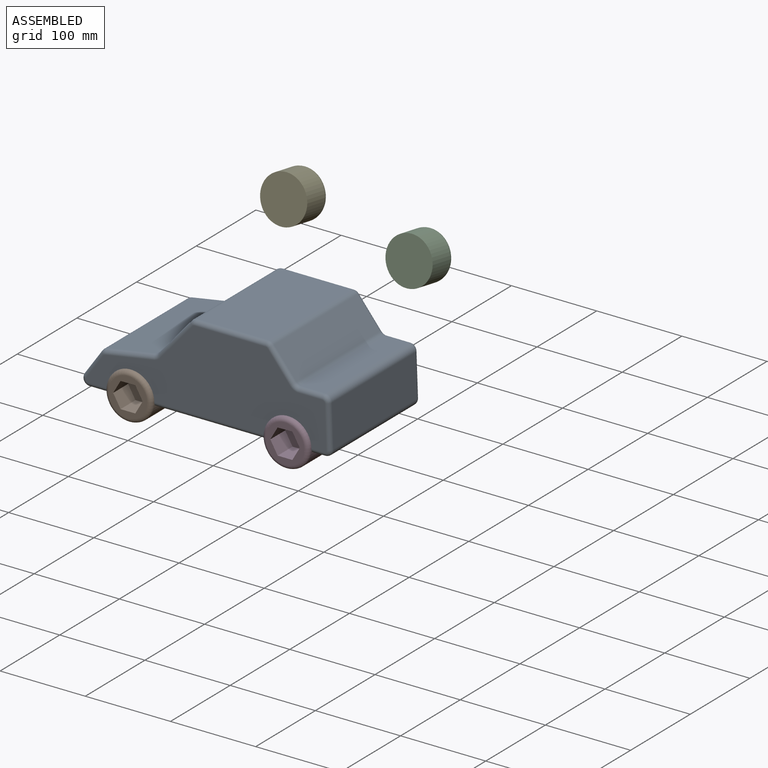
[diagram: assembled view]
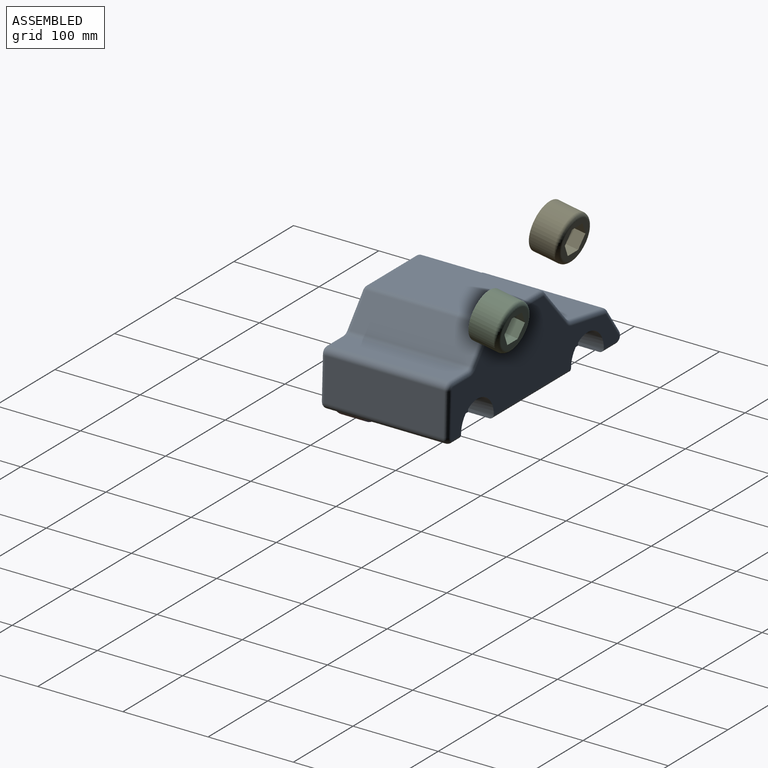
[diagram: assembled view, second angle]
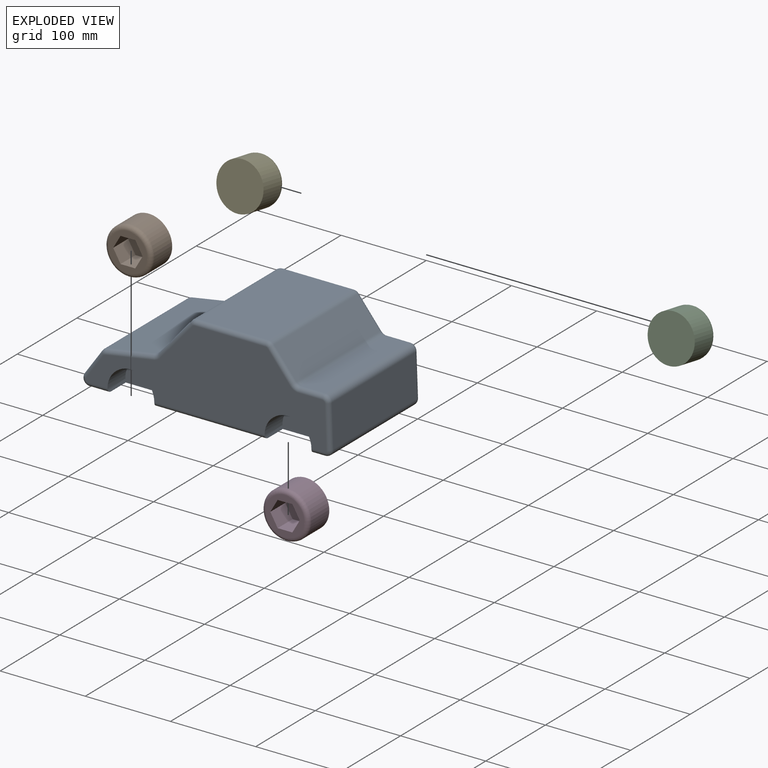
[diagram: exploded view]
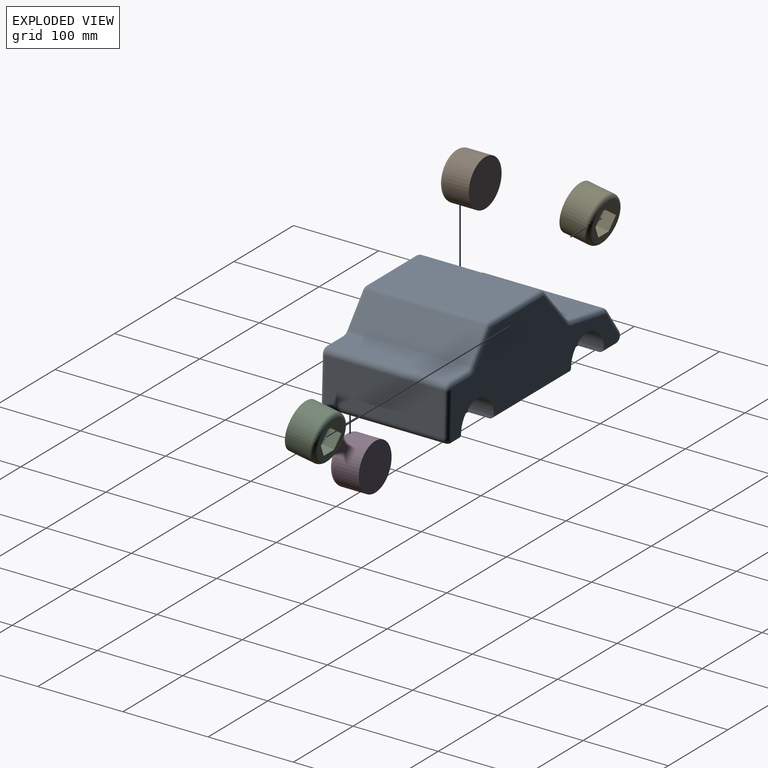
[diagram: exploded view, second angle]
ASSEMBLY  parts=5 mates=2
PART A: 62 faces, bbox 292.3x150x103.9 mm
  f0: plane 276.31x140mm, normal (0,0,-1), area 33274.7mm2, adj f2,f3,f4,f5,f6,f15,f16,f29
  f1: plane 282.31x93.93mm, normal (0,1,0), area 16001.5mm2, adj f2,f3,f4,f39,f40,f41,f42,f43
  f2: cylinder r=5mm len=130.31mm, axis (1,0,0), area 1019.8mm2, adj f0,f1,f59,f61
  f3: cylinder r=5mm len=14.88mm, axis (1,0,0), area 115mm2, adj f0,f1,f42,f61
  f4: cylinder r=5mm len=22.96mm, axis (1,0,0), area 178.5mm2, adj f0,f1,f45,f59
  f5: cylinder r=5mm len=130.31mm, axis (-1,0,0), area 1019.8mm2, adj f0,f14,f55,f57
  f6: cylinder r=5mm len=22.96mm, axis (-1,0,0), area 178.5mm2, adj f0,f14,f31,f55
  f7: plane 140x29.08mm, normal (-0.82,0,0.57), area 4974.5mm2, adj f15,f22,f33,f47
  f8: plane 140x49.39mm, normal (1,0,0.04), area 6918.5mm2, adj f16,f17,f25,f40
  f9: plane 140x27.51mm, normal (0,0,1), area 3851.2mm2, adj f17,f18,f24,f41
  f10: plane 140x32.62mm, normal (0.78,0,0.63), area 5877.3mm2, adj f18,f19,f28,f44
  f11: plane 140x83.3mm, normal (0,0,1), area 11661.9mm2, adj f19,f20,f32,f48
  f12: plane 140x43.89mm, normal (-0.75,0,0.66), area 8144.7mm2, adj f20,f21,f36,f52
  f13: plane 140x56.84mm, normal (-0.17,0,0.99), area 8073mm2, adj f21,f22,f37,f51
  f14: plane 282.31x93.93mm, normal (0,-1,0), area 16001.5mm2, adj f5,f6,f23,f24,f25,f26,f27,f28
  f15: cylinder r=8mm len=140mm, axis (0,-1,0), area 2445mm2, adj f0,f7,f31,f45
  f16: cylinder r=8mm len=140mm, axis (0,-1,0), area 1800.3mm2, adj f0,f8,f27,f42
  f17: cylinder r=8mm len=140mm, axis (0,1,0), area 1718.3mm2, adj f8,f9,f23,f39
  f18: cylinder r=8mm len=140mm, axis (0,-1,0), area 996.7mm2, adj f9,f10,f26,f43
  f19: cylinder r=8mm len=140mm, axis (0,1,0), area 996.7mm2, adj f10,f11,f30,f46
  f20: cylinder r=8mm len=140mm, axis (0,1,0), area 957.4mm2, adj f11,f12,f34,f50
  f21: cylinder r=8mm len=140mm, axis (0,-1,0), area 768.2mm2, adj f12,f13,f38,f53
  f22: cylinder r=8mm len=140mm, axis (0,1,0), area 884.4mm2, adj f7,f13,f35,f49
  f23: torus R=3mm, axis (0,-1,0), area 74.5mm2, adj f14,f17,f24,f25
  f24: cylinder r=5mm len=27.51mm, axis (1,0,0), area 216.1mm2, adj f9,f14,f23,f26
  f25: cylinder r=5mm len=49.57mm, axis (0.04,0,-1), area 388.1mm2, adj f8,f14,f23,f27
  f26: torus R=13mm, axis (0,-1,0), area 68.6mm2, adj f14,f18,f24,f28
  f27: torus R=3mm, axis (0,-1,0), area 78.1mm2, adj f14,f16,f25,f29
  f28: cylinder r=5mm len=35.77mm, axis (0.63,0,-0.78), area 329.7mm2, adj f10,f14,f26,f30
  f29: cylinder r=5mm len=14.88mm, axis (-1,0,0), area 115mm2, adj f0,f14,f27,f57
  f30: torus R=3mm, axis (0,-1,0), area 43.2mm2, adj f14,f19,f28,f32
  f31: torus R=3mm, axis (0,-1,0), area 106mm2, adj f6,f14,f15,f33
  f32: cylinder r=5mm len=83.3mm, axis (1,0,0), area 654.2mm2, adj f11,f14,f30,f34
  f33: cylinder r=5mm len=31.95mm, axis (0.57,0,0.82), area 279.1mm2, adj f7,f14,f31,f35
  f34: torus R=3mm, axis (0,-1,0), area 41.5mm2, adj f14,f20,f32,f36
  f35: torus R=3mm, axis (0,-1,0), area 38.3mm2, adj f14,f22,f33,f37
  f36: cylinder r=5mm len=47.17mm, axis (0.66,0,0.75), area 456.9mm2, adj f12,f14,f34,f38
  f37: cylinder r=5mm len=57.68mm, axis (0.99,0,0.17), area 452.9mm2, adj f13,f14,f35,f38
  f38: torus R=13mm, axis (0,-1,0), area 52.9mm2, adj f14,f21,f36,f37
  f39: torus R=3mm, axis (0,-1,0), area 74.5mm2, adj f1,f17,f40,f41
  f40: cylinder r=5mm len=49.57mm, axis (-0.04,0,1), area 388.1mm2, adj f1,f8,f39,f42
  f41: cylinder r=5mm len=27.51mm, axis (-1,0,0), area 216.1mm2, adj f1,f9,f39,f43
  f42: torus R=3mm, axis (0,-1,0), area 78.1mm2, adj f1,f3,f16,f40
  f43: torus R=13mm, axis (0,-1,0), area 68.6mm2, adj f1,f18,f41,f44
  f44: cylinder r=5mm len=35.77mm, axis (-0.63,0,0.78), area 329.7mm2, adj f1,f10,f43,f46
  f45: torus R=3mm, axis (0,-1,0), area 106mm2, adj f1,f4,f15,f47
  f46: torus R=3mm, axis (0,-1,0), area 43.2mm2, adj f1,f19,f44,f48
  f47: cylinder r=5mm len=31.95mm, axis (-0.57,0,-0.82), area 279.1mm2, adj f1,f7,f45,f49
  f48: cylinder r=5mm len=83.3mm, axis (-1,0,0), area 654.2mm2, adj f1,f11,f46,f50
  f49: torus R=3mm, axis (0,-1,0), area 38.3mm2, adj f1,f22,f47,f51
  f50: torus R=3mm, axis (0,-1,0), area 41.5mm2, adj f1,f20,f48,f52
  f51: cylinder r=5mm len=57.68mm, axis (-0.99,0,-0.17), area 452.9mm2, adj f1,f13,f49,f53
  f52: cylinder r=5mm len=47.17mm, axis (-0.66,0,-0.75), area 456.9mm2, adj f1,f12,f50,f53
  f53: torus R=13mm, axis (0,-1,0), area 52.9mm2, adj f1,f21,f51,f52
  f54: plane 55x32.5mm, normal (0,-1,0), area 1461.4mm2, adj f0,f55
  f55: cylinder r=27.5mm len=55mm, axis (0,-1,0), area 2882.6mm2, adj f0,f5,f6,f14,f54
  f56: plane 55x32.5mm, normal (0,-1,0), area 1461.4mm2, adj f0,f57
  f57: cylinder r=27.5mm len=55mm, axis (0,-1,0), area 2882.6mm2, adj f0,f5,f14,f29,f56
  f58: plane 55x32.5mm, normal (0,1,0), area 1461.4mm2, adj f0,f59
  f59: cylinder r=27.5mm len=55mm, axis (0,1,0), area 2882.6mm2, adj f0,f1,f2,f4,f58
  f60: plane 55x32.5mm, normal (0,1,0), area 1461.4mm2, adj f0,f61
  f61: cylinder r=27.5mm len=55mm, axis (0,1,0), area 2882.6mm2, adj f0,f1,f2,f3,f60
PART B: 11 faces, bbox 59.5x35x59.5 mm
  f0: cylinder r=27.5mm len=55mm, axis (0,1,0), area 5183.6mm2, adj f2,f3
  f1: plane 45x45mm, normal (0,-1,0), area 815.9mm2, adj f3,f4,f5,f6,f7,f8,f9
  f2: plane 55x55mm, normal (0,1,0), area 2375.8mm2, adj f0
  f3: torus R=22.5mm, axis (0,-1,0), area 1267.4mm2, adj f0,f1
  f4: plane 25x14.95mm, normal (-0.87,0,-0.5), area 431.6mm2, adj f1,f5,f9,f10
  f5: plane 25x17.27mm, normal (0,0,-1), area 431.6mm2, adj f1,f4,f6,f10
  f6: plane 25x14.95mm, normal (0.87,0,-0.5), area 431.6mm2, adj f1,f5,f7,f10
  f7: plane 25x14.95mm, normal (0.87,0,0.5), area 431.6mm2, adj f1,f6,f8,f10
  f8: plane 25x17.27mm, normal (0,0,1), area 431.6mm2, adj f1,f7,f9,f10
  f9: plane 25x14.95mm, normal (-0.87,0,0.5), area 431.6mm2, adj f1,f4,f8,f10
  f10: plane 34.53x29.91mm, normal (0,-1,0), area 774.5mm2, adj f4,f5,f6,f7,f8,f9
PART C: same geometry as B
PART D: same geometry as B
PART E: same geometry as B
PLACE A t=(-39.97,40.95,-26.02)mm fixed
PLACE B t=(-120.18,-79.05,-70.31)mm
PLACE C rot(axis=(1,0,0),170deg) t=(84.71,64.57,60.78)mm
PLACE D t=(64.21,-79.05,-70.31)mm
PLACE E rot(axis=(1,0,0),170deg) t=(-47.35,43.03,99.03)mm
MATE revolute D.f0 <-> A.f57  axis (0,1,0) through (64.21,-79.05,-70.31)mm
MATE revolute B.f0 <-> A.f55  axis (0,1,0) through (-120.18,-79.05,-70.31)mm
